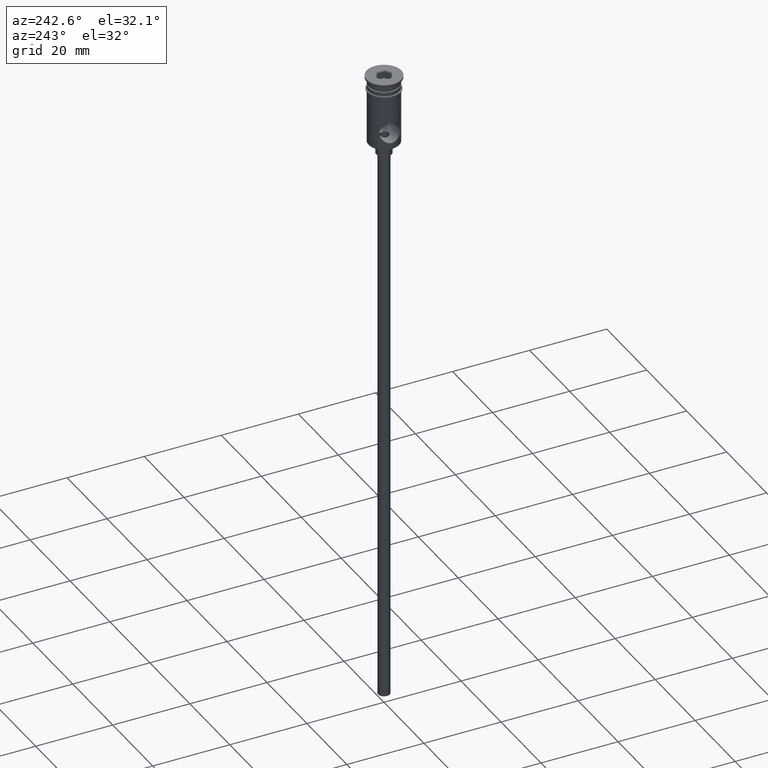
[diagram: clean part render]
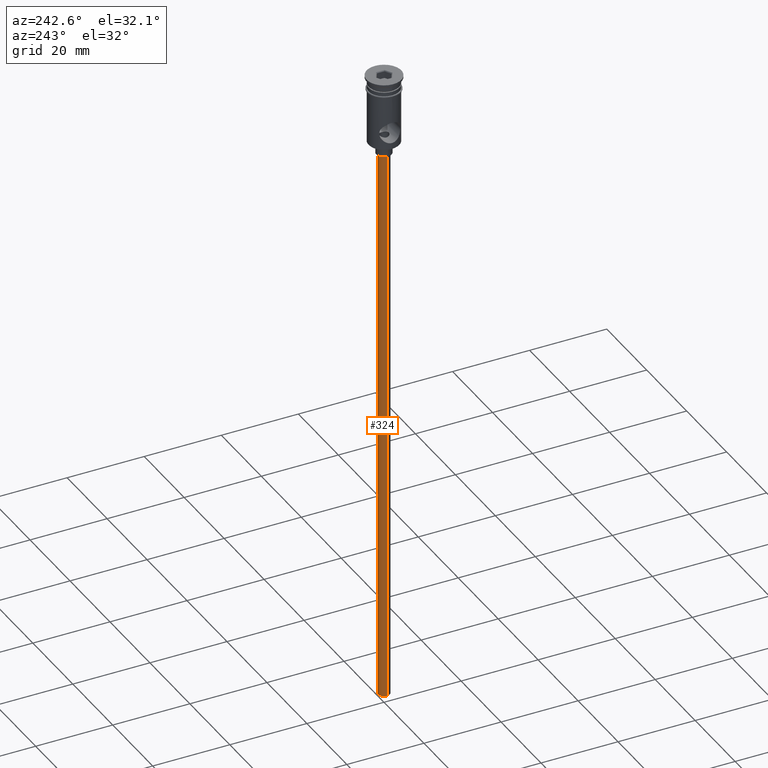
[diagram: same view with one face highlighted and labeled with its STEP entity id]
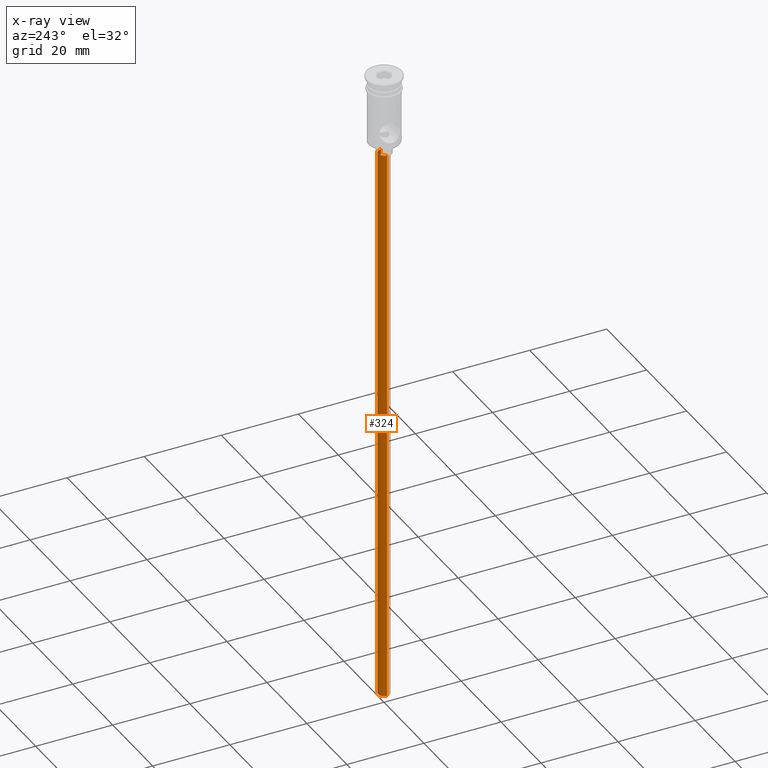
[diagram: x-ray of the same camera — body ghosted, the highlighted face saturated]
A machine part, auxiliary view. The second image highlights one B-rep face of the part: STEP entity #324.
The next image is the same camera in x-ray: the body ghosted, the highlighted face saturated — about 0% of this face is hidden behind the body in this view.
In plain terms, the highlighted cylindrical surface (edge-blend (fillet) strip) has radius 1.5 mm, axis along (-0, -0, 1).
Its self-contained STEP definition (entity closure, byte-faithful):
#26 = ORIENTED_EDGE ( 'NONE', *, *, #1280, .T. ) ;
#71 = VERTEX_POINT ( 'NONE', #1205 ) ;
#85 = DIRECTION ( 'NONE',  ( 1.000000000000000000, 0.000000000000000000, 0.000000000000000000 ) ) ;
#130 = VERTEX_POINT ( 'NONE', #1039 ) ;
#217 = CARTESIAN_POINT ( 'NONE',  ( -1.500000000000000222, 1.836970198721030181E-16, -167.9999999999999716 ) ) ;
#242 = EDGE_LOOP ( 'NONE', ( #1094, #1237, #26, #1281 ) ) ;
#249 = CIRCLE ( 'NONE', #424, 1.500000000000000222 ) ;
#285 = CARTESIAN_POINT ( 'NONE',  ( 0.000000000000000000, 0.000000000000000000, -167.9999999999999716 ) ) ;
#324 = ADVANCED_FACE ( 'NONE', ( #444 ), #883, .T. ) ;
#337 = VECTOR ( 'NONE', #705, 1000.000000000000000 ) ;
#417 = VERTEX_POINT ( 'NONE', #1417 ) ;
#424 = AXIS2_PLACEMENT_3D ( 'NONE', #1059, #1278, #641 ) ;
#426 = VECTOR ( 'NONE', #1424, 1000.000000000000000 ) ;
#444 = FACE_OUTER_BOUND ( 'NONE', #242, .T. ) ;
#474 = CARTESIAN_POINT ( 'NONE',  ( 0.000000000000000000, 0.000000000000000000, -167.9999999999999716 ) ) ;
#542 = EDGE_CURVE ( 'NONE', #417, #71, #1195, .T. ) ;
#592 = CARTESIAN_POINT ( 'NONE',  ( 1.500000000000000222, 0.000000000000000000, -20.99999999999999645 ) ) ;
#641 = DIRECTION ( 'NONE',  ( -1.000000000000000000, 0.000000000000000000, 0.000000000000000000 ) ) ;
#650 = LINE ( 'NONE', #980, #426 ) ;
#705 = DIRECTION ( 'NONE',  ( -0.000000000000000000, -0.000000000000000000, 1.000000000000000000 ) ) ;
#722 = DIRECTION ( 'NONE',  ( -0.000000000000000000, -0.000000000000000000, 1.000000000000000000 ) ) ;
#867 = CIRCLE ( 'NONE', #922, 1.500000000000000222 ) ;
#883 = CYLINDRICAL_SURFACE ( 'NONE', #1160, 1.500000000000000222 ) ;
#922 = AXIS2_PLACEMENT_3D ( 'NONE', #474, #1152, #1013 ) ;
#939 = EDGE_CURVE ( 'NONE', #417, #130, #867, .T. ) ;
#980 = CARTESIAN_POINT ( 'NONE',  ( 1.500000000000000222, 0.000000000000000000, -167.9999999999999716 ) ) ;
#1013 = DIRECTION ( 'NONE',  ( -1.000000000000000000, 0.000000000000000000, 0.000000000000000000 ) ) ;
#1016 = VERTEX_POINT ( 'NONE', #592 ) ;
#1039 = CARTESIAN_POINT ( 'NONE',  ( 1.500000000000000222, 0.000000000000000000, -167.9999999999999716 ) ) ;
#1059 = CARTESIAN_POINT ( 'NONE',  ( 0.000000000000000000, 0.000000000000000000, -20.99999999999999645 ) ) ;
#1094 = ORIENTED_EDGE ( 'NONE', *, *, #939, .F. ) ;
#1152 = DIRECTION ( 'NONE',  ( 0.000000000000000000, 0.000000000000000000, -1.000000000000000000 ) ) ;
#1160 = AXIS2_PLACEMENT_3D ( 'NONE', #285, #722, #85 ) ;
#1183 = EDGE_CURVE ( 'NONE', #130, #1016, #650, .T. ) ;
#1195 = LINE ( 'NONE', #217, #337 ) ;
#1205 = CARTESIAN_POINT ( 'NONE',  ( -1.500000000000000222, 1.836970198721030181E-16, -20.99999999999999645 ) ) ;
#1237 = ORIENTED_EDGE ( 'NONE', *, *, #542, .T. ) ;
#1278 = DIRECTION ( 'NONE',  ( 0.000000000000000000, 0.000000000000000000, -1.000000000000000000 ) ) ;
#1280 = EDGE_CURVE ( 'NONE', #71, #1016, #249, .T. ) ;
#1281 = ORIENTED_EDGE ( 'NONE', *, *, #1183, .F. ) ;
#1417 = CARTESIAN_POINT ( 'NONE',  ( -1.500000000000000222, 1.836970198721030181E-16, -167.9999999999999716 ) ) ;
#1424 = DIRECTION ( 'NONE',  ( -0.000000000000000000, -0.000000000000000000, 1.000000000000000000 ) ) ;